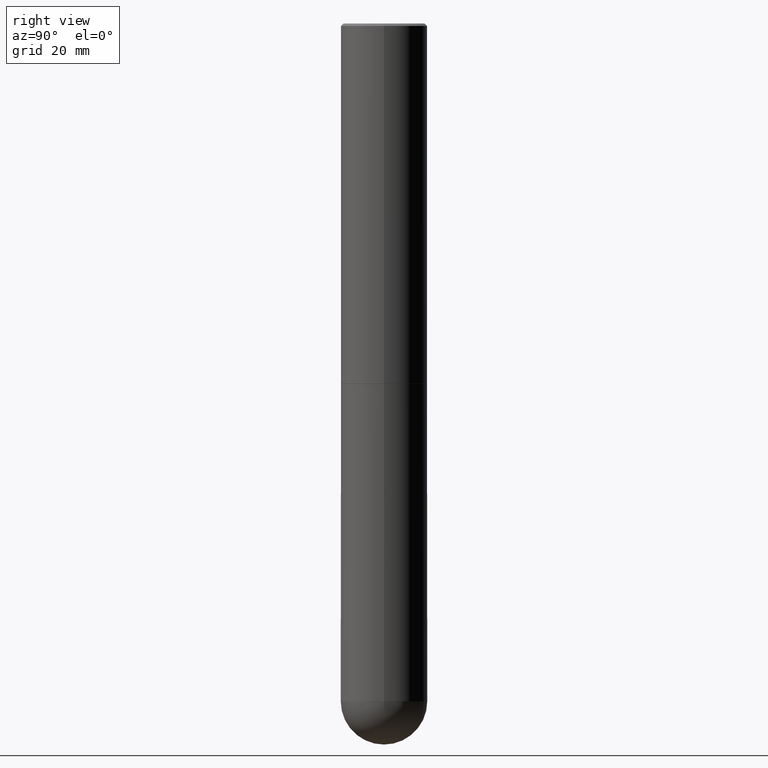
[diagram: clean part render]
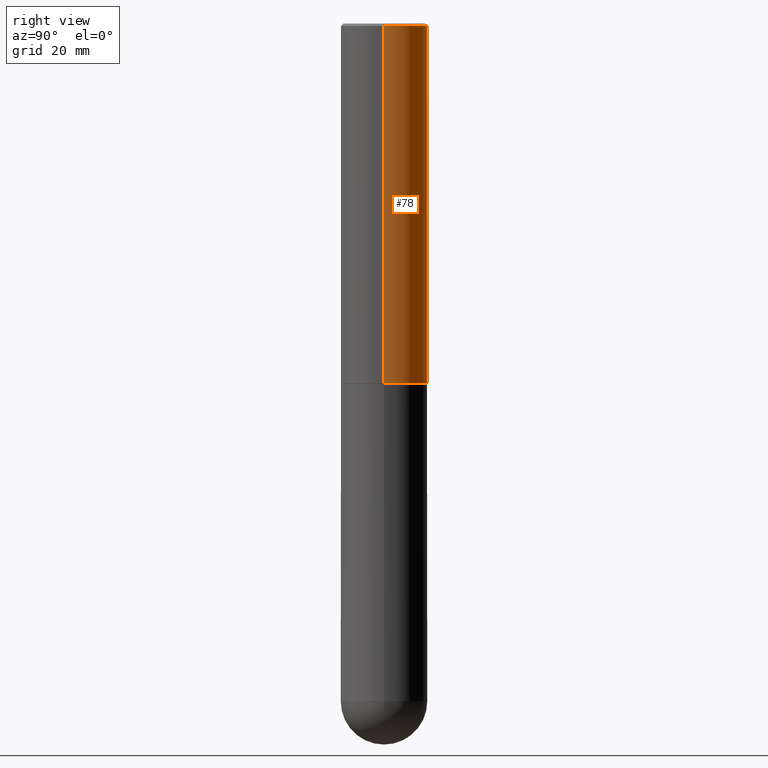
[diagram: same view with one face highlighted and labeled with its STEP entity id]
A machine part, right view. The second image highlights one B-rep face of the part: STEP entity #78.
In plain terms, the highlighted cylindrical surface (partial cylindrical patch) has radius 9.0005 mm, axis along (-0, 0, 1).
Its self-contained STEP definition (entity closure, byte-faithful):
#3 = AXIS2_PLACEMENT_3D ( 'NONE', #310, #214, #154 ) ;
#33 = CARTESIAN_POINT ( 'NONE',  ( 0.3543500000000002204, -2.474412824838130272E-15, 1.727873240503290870E-29 ) ) ;
#37 = ORIENTED_EDGE ( 'NONE', *, *, #294, .F. ) ;
#41 = VERTEX_POINT ( 'NONE', #306 ) ;
#64 = AXIS2_PLACEMENT_3D ( 'NONE', #115, #334, #216 ) ;
#73 = VERTEX_POINT ( 'NONE', #157 ) ;
#78 = ADVANCED_FACE ( 'NONE', ( #215 ), #282, .T. ) ;
#86 = ORIENTED_EDGE ( 'NONE', *, *, #283, .T. ) ;
#115 = CARTESIAN_POINT ( 'NONE',  ( 7.218290275216666916E-29, -1.030580546786331359E-14, -2.951700000000000212 ) ) ;
#116 = VERTEX_POINT ( 'NONE', #372 ) ;
#135 = VECTOR ( 'NONE', #407, 39.37007874015748143 ) ;
#154 = DIRECTION ( 'NONE',  ( 1.000000000000000000, -6.982962677686266711E-15, 0.000000000000000000 ) ) ;
#157 = CARTESIAN_POINT ( 'NONE',  ( 0.3543500000000004424, -1.278021829270144662E-14, -2.951700000000000212 ) ) ;
#168 = EDGE_CURVE ( 'NONE', #73, #116, #342, .T. ) ;
#171 = AXIS2_PLACEMENT_3D ( 'NONE', #345, #241, #182 ) ;
#182 = DIRECTION ( 'NONE',  ( 1.000000000000000000, -6.982962677686266711E-15, 4.876176775795935793E-29 ) ) ;
#183 = LINE ( 'NONE', #401, #377 ) ;
#184 = CIRCLE ( 'NONE', #3, 0.3543499999999999983 ) ;
#214 = DIRECTION ( 'NONE',  ( -2.445468806185136597E-29, 3.491481338843145583E-15, 1.000000000000000000 ) ) ;
#215 = FACE_OUTER_BOUND ( 'NONE', #359, .T. ) ;
#216 = DIRECTION ( 'NONE',  ( 1.000000000000000000, -6.982962677686268288E-15, 0.000000000000000000 ) ) ;
#222 = DIRECTION ( 'NONE',  ( -2.445468806185136877E-29, 3.491481338843145188E-15, 1.000000000000000000 ) ) ;
#241 = DIRECTION ( 'NONE',  ( -2.445468806185136597E-29, 3.491481338843145583E-15, 1.000000000000000000 ) ) ;
#242 = CARTESIAN_POINT ( 'NONE',  ( -0.3543500000000004424, -2.670009363154166740E-15, -2.951700000000000212 ) ) ;
#260 = ORIENTED_EDGE ( 'NONE', *, *, #376, .T. ) ;
#282 = CYLINDRICAL_SURFACE ( 'NONE', #171, 0.3543500000000002204 ) ;
#283 = EDGE_CURVE ( 'NONE', #73, #320, #384, .T. ) ;
#292 = ORIENTED_EDGE ( 'NONE', *, *, #168, .F. ) ;
#294 = EDGE_CURVE ( 'NONE', #116, #41, #184, .T. ) ;
#306 = CARTESIAN_POINT ( 'NONE',  ( -0.3543499999999999983, 2.404583198061265396E-15, -0.02000000000000008021 ) ) ;
#310 = CARTESIAN_POINT ( 'NONE',  ( 4.890937612370293302E-31, -6.982962677686318726E-17, -0.02000000000000008021 ) ) ;
#320 = VERTEX_POINT ( 'NONE', #242 ) ;
#334 = DIRECTION ( 'NONE',  ( -2.445468806185136597E-29, 3.491481338843145583E-15, 1.000000000000000000 ) ) ;
#342 = LINE ( 'NONE', #33, #135 ) ;
#345 = CARTESIAN_POINT ( 'NONE',  ( 0.000000000000000000, 0.000000000000000000, 0.000000000000000000 ) ) ;
#359 = EDGE_LOOP ( 'NONE', ( #86, #260, #37, #292 ) ) ;
#372 = CARTESIAN_POINT ( 'NONE',  ( 0.3543499999999999983, -2.500847092287205690E-15, -0.02000000000000008021 ) ) ;
#376 = EDGE_CURVE ( 'NONE', #320, #41, #183, .T. ) ;
#377 = VECTOR ( 'NONE', #222, 39.37007874015748143 ) ;
#384 = CIRCLE ( 'NONE', #64, 0.3543500000000004424 ) ;
#401 = CARTESIAN_POINT ( 'NONE',  ( -0.3543500000000002204, 2.517808184165916574E-15, -1.743024649231827187E-29 ) ) ;
#407 = DIRECTION ( 'NONE',  ( -2.445468806185136877E-29, 3.491481338843145188E-15, 1.000000000000000000 ) ) ;